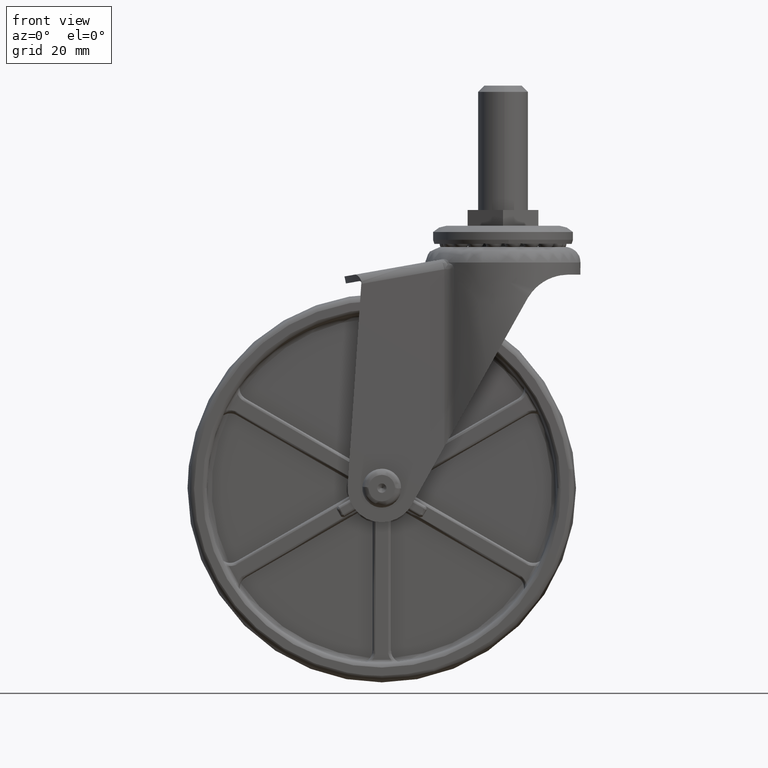
[diagram: clean part render]
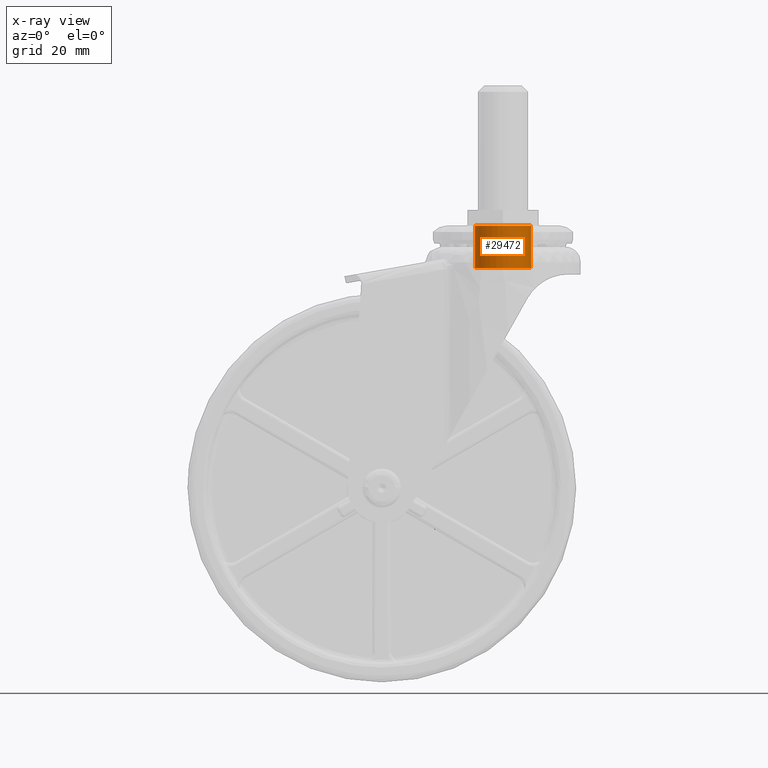
[diagram: x-ray — body ghosted, one internal face saturated and labeled with its STEP entity id]
A machine part, front view, then the same camera in x-ray: the body is ghosted and one INTERNAL B-rep face — a face not visible from any outside direction — is saturated and labeled: STEP entity #29472.
In plain terms, the highlighted face is a freeform B-spline surface patch.
Its self-contained STEP definition (entity closure, byte-faithful):
#29293=CARTESIAN_POINT('',(45.838371058770477,5.851211948183921,84.742492849999991));
#29294=CARTESIAN_POINT('',(46.352948816678143,5.249819676236732,84.742492850000005));
#29295=CARTESIAN_POINT('',(46.754662443973707,4.567845266646357,84.742492850000019));
#29296=CARTESIAN_POINT('',(51.322507710620080,-3.186817177327359,84.742492850000019));
#29297=CARTESIAN_POINT('',(43.567845266646358,-7.754662443973715,84.742492850000019));
#29298=CARTESIAN_POINT('',(35.813182822672644,-12.322507710620073,84.742492850000019));
#29299=CARTESIAN_POINT('',(31.245337556026289,-4.567845266646357,84.742492850000019));
#29300=CARTESIAN_POINT('',(26.677492289379924,3.186817177327359,84.742492850000019));
#29301=CARTESIAN_POINT('',(34.432154733353642,7.754662443973715,84.742492850000019));
#29302=CARTESIAN_POINT('',(45.838371058770477,5.851211948183921,70.348936653750073));
#29303=CARTESIAN_POINT('',(46.352948816678143,5.249819676236732,70.348936653750073));
#29304=CARTESIAN_POINT('',(46.754662443973707,4.567845266646357,70.348936653750073));
#29305=CARTESIAN_POINT('',(51.322507710620080,-3.186817177327359,70.348936653750073));
#29306=CARTESIAN_POINT('',(43.567845266646358,-7.754662443973715,70.348936653750073));
#29307=CARTESIAN_POINT('',(35.813182822672644,-12.322507710620073,70.348936653750073));
#29308=CARTESIAN_POINT('',(31.245337556026289,-4.567845266646357,70.348936653750073));
#29309=CARTESIAN_POINT('',(26.677492289379924,3.186817177327359,70.348936653750073));
#29310=CARTESIAN_POINT('',(34.432154733353642,7.754662443973715,70.348936653750073));
#29318=(BOUNDED_SURFACE()B_SPLINE_SURFACE(2,1,((#29293,#29302),(#29294,#29303),(#29295,#29304),(#29296,#29305),(#29297,#29306),(#29298,#29307),(#29299,#29308),(#29300,#29309),(#29301,#29310)),.UNSPECIFIED.,.F.,.F.,.U.)B_SPLINE_SURFACE_WITH_KNOTS((3,2,2,2,3),(2,2),(0.0,1.789402589451770,16.701090834883189,31.612779080314599,46.524467325746009),(0.0,14.393556196249961),.UNSPECIFIED.)GEOMETRIC_REPRESENTATION_ITEM()RATIONAL_B_SPLINE_SURFACE(((0.938140952186599,0.938140952186599),(0.964852813742386,0.964852813742386),(1.0,1.0),(0.707106781186548,0.707106781186548),(1.0,1.0),(0.707106781186548,0.707106781186548),(1.0,1.0),(0.707106781186548,0.707106781186548),(1.0,1.0)))REPRESENTATION_ITEM('')SURFACE());
#29319=CARTESIAN_POINT('',(45.838374866984161,5.851207497479898,84.399993000000194));
#29320=VERTEX_POINT('',#29319);
#29321=CARTESIAN_POINT('',(48.0,0.0,84.399993000000009));
#29322=VERTEX_POINT('',#29321);
#29323=CARTESIAN_POINT('',(45.838374866984161,5.851207497479898,84.399993000000194));
#29324=CARTESIAN_POINT('',(47.999999999999993,3.324890837575736,84.399992999999995));
#29325=CARTESIAN_POINT('',(48.0,0.0,84.399993000000009));
#29333=(BOUNDED_CURVE()B_SPLINE_CURVE(2,(#29323,#29324,#29325),.UNSPECIFIED.,.F.,.U.)B_SPLINE_CURVE_WITH_KNOTS((3,3),(0.386720430986571,0.500000000000000),.UNSPECIFIED.)CURVE()GEOMETRIC_REPRESENTATION_ITEM()RATIONAL_B_SPLINE_CURVE((0.854840888284922,0.867284729623424,1.0))REPRESENTATION_ITEM(''));
#29334=EDGE_CURVE('',#29320,#29322,#29333,.T.);
#29335=ORIENTED_EDGE('',*,*,#29334,.T.);
#29336=CARTESIAN_POINT('',(30.0,0.0,84.399993000000009));
#29337=VERTEX_POINT('',#29336);
#29338=CARTESIAN_POINT('',(48.0,0.0,84.399993000000009));
#29339=CARTESIAN_POINT('',(48.0,-9.0,84.399992999999995));
#29340=CARTESIAN_POINT('',(39.0,-9.0,84.399993000000009));
#29341=CARTESIAN_POINT('',(29.999999999999993,-9.0,84.399992999999995));
#29342=CARTESIAN_POINT('',(30.0,0.0,84.399993000000009));
#29350=(BOUNDED_CURVE()B_SPLINE_CURVE(2,(#29338,#29339,#29340,#29341,#29342),.UNSPECIFIED.,.F.,.U.)B_SPLINE_CURVE_WITH_KNOTS((3,2,3),(0.500000000000000,0.750000000000000,1.0),.UNSPECIFIED.)CURVE()GEOMETRIC_REPRESENTATION_ITEM()RATIONAL_B_SPLINE_CURVE((1.0,0.707106781186547,1.0,0.707106781186547,1.0))REPRESENTATION_ITEM(''));
#29351=EDGE_CURVE('',#29322,#29337,#29350,.T.);
#29352=ORIENTED_EDGE('',*,*,#29351,.T.);
#29353=CARTESIAN_POINT('',(34.432154733332730,7.754662443961401,84.399993000000009));
#29354=VERTEX_POINT('',#29353);
#29355=CARTESIAN_POINT('',(30.0,0.0,84.399993000000009));
#29356=CARTESIAN_POINT('',(30.0,5.143923786254787,84.399993000000009));
#29357=CARTESIAN_POINT('',(34.432154733332737,7.754662443961401,84.399993000000009));
#29365=(BOUNDED_CURVE()B_SPLINE_CURVE(2,(#29355,#29356,#29357),.UNSPECIFIED.,.F.,.U.)B_SPLINE_CURVE_WITH_KNOTS((3,3),(0.0,0.163390844589161),.UNSPECIFIED.)CURVE()GEOMETRIC_REPRESENTATION_ITEM()RATIONAL_B_SPLINE_CURVE((1.0,0.808575718414528,0.867367237174045))REPRESENTATION_ITEM(''));
#29366=EDGE_CURVE('',#29337,#29354,#29365,.T.);
#29367=ORIENTED_EDGE('',*,*,#29366,.T.);
#29368=CARTESIAN_POINT('',(34.432154397681828,7.754662246247885,70.699999000000105));
#29369=VERTEX_POINT('',#29368);
#29370=CARTESIAN_POINT('',(34.432154733332730,7.754662443961401,84.399993000000009));
#29371=CARTESIAN_POINT('',(34.432154397681828,7.754662246247885,70.699999000000105));
#29372=QUASI_UNIFORM_CURVE('',1,(#29370,#29371),.UNSPECIFIED.,.F.,.U.);
#29373=EDGE_CURVE('',#29354,#29369,#29372,.T.);
#29374=ORIENTED_EDGE('',*,*,#29373,.T.);
#29375=CARTESIAN_POINT('',(31.205771365939949,4.499999999999949,70.699999000000091));
#29376=VERTEX_POINT('',#29375);
#29377=CARTESIAN_POINT('',(31.205771365940009,4.499999999999919,70.699999000000091));
#29378=CARTESIAN_POINT('',(32.390522285616804,6.552048787194129,70.699999000000091));
#29379=CARTESIAN_POINT('',(34.432154397681828,7.754662246247886,70.699999000000105));
#29387=(BOUNDED_CURVE()B_SPLINE_CURVE(2,(#29377,#29378,#29379),.UNSPECIFIED.,.F.,.U.)B_SPLINE_CURVE_WITH_KNOTS((3,3),(0.0,0.491857795747791),.UNSPECIFIED.)CURVE()GEOMETRIC_REPRESENTATION_ITEM()RATIONAL_B_SPLINE_CURVE((1.0,0.934103550419212,0.933030465715248))REPRESENTATION_ITEM(''));
#29388=EDGE_CURVE('',#29376,#29369,#29387,.T.);
#29389=ORIENTED_EDGE('',*,*,#29388,.F.);
#29390=CARTESIAN_POINT('',(31.205771365939501,-4.500000000000280,70.699999000000091));
#29391=VERTEX_POINT('',#29390);
#29392=CARTESIAN_POINT('',(31.205771365939501,-4.500000000000280,70.699999000000091));
#29393=CARTESIAN_POINT('',(28.607695154586775,-3.642919E-014,70.699999000000091));
#29394=CARTESIAN_POINT('',(31.205771365940009,4.499999999999917,70.699999000000091));
#29402=(BOUNDED_CURVE()B_SPLINE_CURVE(2,(#29392,#29393,#29394),.UNSPECIFIED.,.F.,.U.)CURVE()GEOMETRIC_REPRESENTATION_ITEM()QUASI_UNIFORM_CURVE()RATIONAL_B_SPLINE_CURVE((1.0,0.866025403784442,1.0))REPRESENTATION_ITEM(''));
#29403=EDGE_CURVE('',#29391,#29376,#29402,.T.);
#29404=ORIENTED_EDGE('',*,*,#29403,.F.);
#29405=CARTESIAN_POINT('',(39.0,-9.0,70.699999000000091));
#29406=VERTEX_POINT('',#29405);
#29407=CARTESIAN_POINT('',(39.0,-9.0,70.699999000000091));
#29408=CARTESIAN_POINT('',(33.803847577293340,-9.0,70.699999000000091));
#29409=CARTESIAN_POINT('',(31.205771365939501,-4.500000000000280,70.699999000000091));
#29417=(BOUNDED_CURVE()B_SPLINE_CURVE(2,(#29407,#29408,#29409),.UNSPECIFIED.,.F.,.U.)CURVE()GEOMETRIC_REPRESENTATION_ITEM()QUASI_UNIFORM_CURVE()RATIONAL_B_SPLINE_CURVE((1.0,0.866025403784438,1.0))REPRESENTATION_ITEM(''));
#29418=EDGE_CURVE('',#29406,#29391,#29417,.T.);
#29419=ORIENTED_EDGE('',*,*,#29418,.F.);
#29420=CARTESIAN_POINT('',(46.794228634060097,-4.500000000000170,70.699999000000091));
#29421=VERTEX_POINT('',#29420);
#29422=CARTESIAN_POINT('',(46.794228634060097,-4.500000000000170,70.699999000000091));
#29423=CARTESIAN_POINT('',(44.196152422706575,-9.0,70.699999000000091));
#29424=CARTESIAN_POINT('',(39.0,-9.0,70.699999000000091));
#29432=(BOUNDED_CURVE()B_SPLINE_CURVE(2,(#29422,#29423,#29424),.UNSPECIFIED.,.F.,.U.)CURVE()GEOMETRIC_REPRESENTATION_ITEM()QUASI_UNIFORM_CURVE()RATIONAL_B_SPLINE_CURVE((1.0,0.866025403784440,1.0))REPRESENTATION_ITEM(''));
#29433=EDGE_CURVE('',#29421,#29406,#29432,.T.);
#29434=ORIENTED_EDGE('',*,*,#29433,.F.);
#29435=CARTESIAN_POINT('',(46.794228634059998,4.500000000000060,70.699999000000091));
#29436=VERTEX_POINT('',#29435);
#29437=CARTESIAN_POINT('',(46.794228634059927,4.500000000000024,70.699999000000091));
#29438=CARTESIAN_POINT('',(49.392304845413292,-2.255141E-014,70.699999000000091));
#29439=CARTESIAN_POINT('',(46.794228634060097,-4.500000000000170,70.699999000000091));
#29447=(BOUNDED_CURVE()B_SPLINE_CURVE(2,(#29437,#29438,#29439),.UNSPECIFIED.,.F.,.U.)CURVE()GEOMETRIC_REPRESENTATION_ITEM()QUASI_UNIFORM_CURVE()RATIONAL_B_SPLINE_CURVE((1.0,0.866025403784436,1.0))REPRESENTATION_ITEM(''));
#29448=EDGE_CURVE('',#29436,#29421,#29447,.T.);
#29449=ORIENTED_EDGE('',*,*,#29448,.F.);
#29450=CARTESIAN_POINT('',(45.838373341560711,5.851209280261593,70.699999000000091));
#29451=VERTEX_POINT('',#29450);
#29452=CARTESIAN_POINT('',(45.838373341560711,5.851209280261593,70.699999000000091));
#29453=CARTESIAN_POINT('',(46.378687927676388,5.219737616069407,70.699999000000091));
#29454=CARTESIAN_POINT('',(46.794228634059927,4.500000000000024,70.699999000000091));
#29462=(BOUNDED_CURVE()B_SPLINE_CURVE(2,(#29452,#29453,#29454),.UNSPECIFIED.,.F.,.U.)B_SPLINE_CURVE_WITH_KNOTS((3,3),(0.819774571273070,1.0),.UNSPECIFIED.)CURVE()GEOMETRIC_REPRESENTATION_ITEM()RATIONAL_B_SPLINE_CURVE((0.960412054608826,0.975854370958533,1.0))REPRESENTATION_ITEM(''));
#29463=EDGE_CURVE('',#29451,#29436,#29462,.T.);
#29464=ORIENTED_EDGE('',*,*,#29463,.F.);
#29465=CARTESIAN_POINT('',(45.838374866984161,5.851207497479898,84.399993000000194));
#29466=CARTESIAN_POINT('',(45.838373341560711,5.851209280261593,70.699999000000091));
#29467=QUASI_UNIFORM_CURVE('',1,(#29465,#29466),.UNSPECIFIED.,.F.,.U.);
#29468=EDGE_CURVE('',#29320,#29451,#29467,.T.);
#29469=ORIENTED_EDGE('',*,*,#29468,.F.);
#29470=EDGE_LOOP('',(#29335,#29352,#29367,#29374,#29389,#29404,#29419,#29434,#29449,#29464,#29469));
#29471=FACE_OUTER_BOUND('',#29470,.T.);
#29472=ADVANCED_FACE('',(#29471),#29318,.T.);